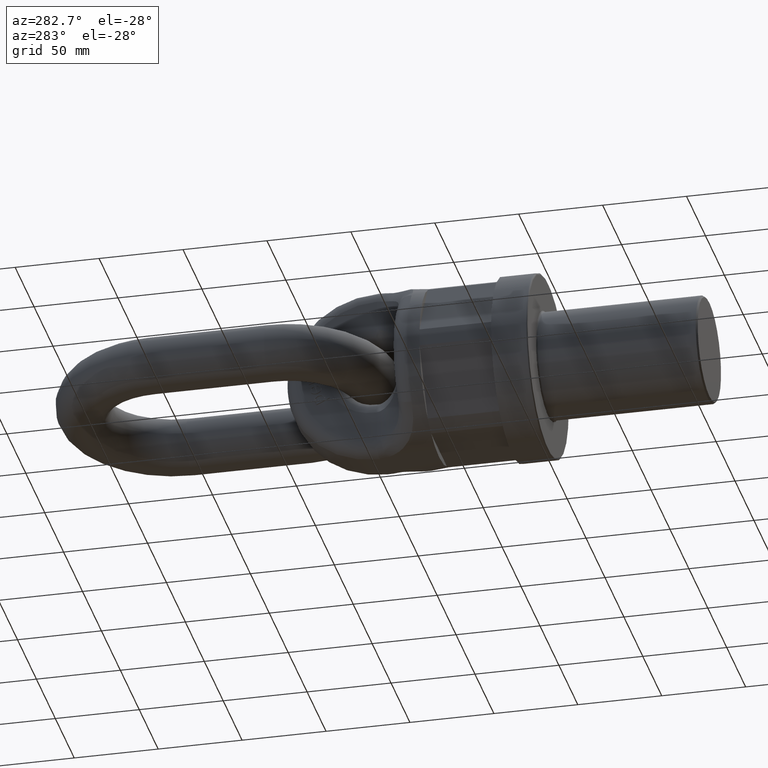
[diagram: clean part render]
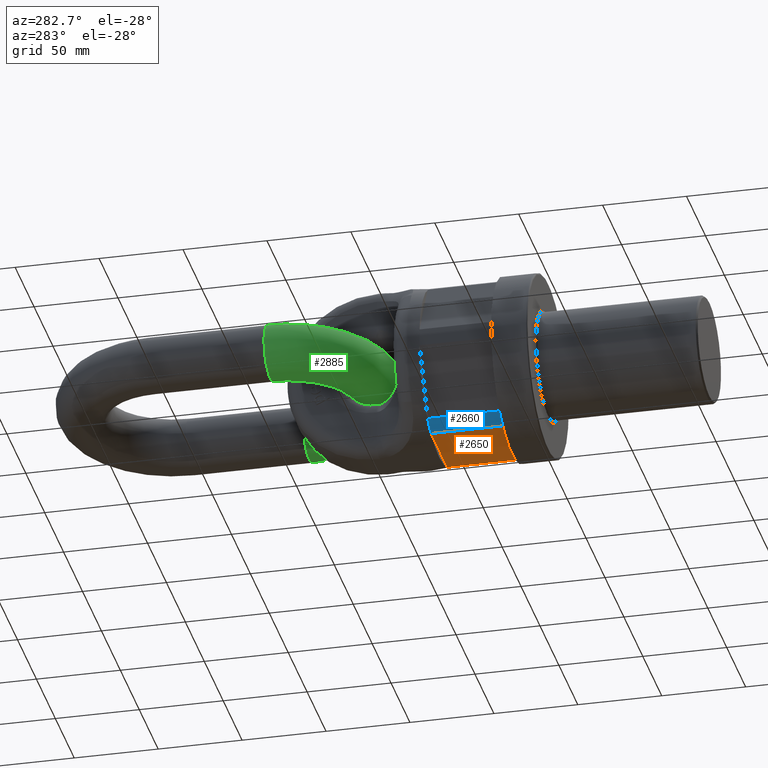
[diagram: same view with three faces highlighted in distinct colors, each labeled with its STEP entity id]
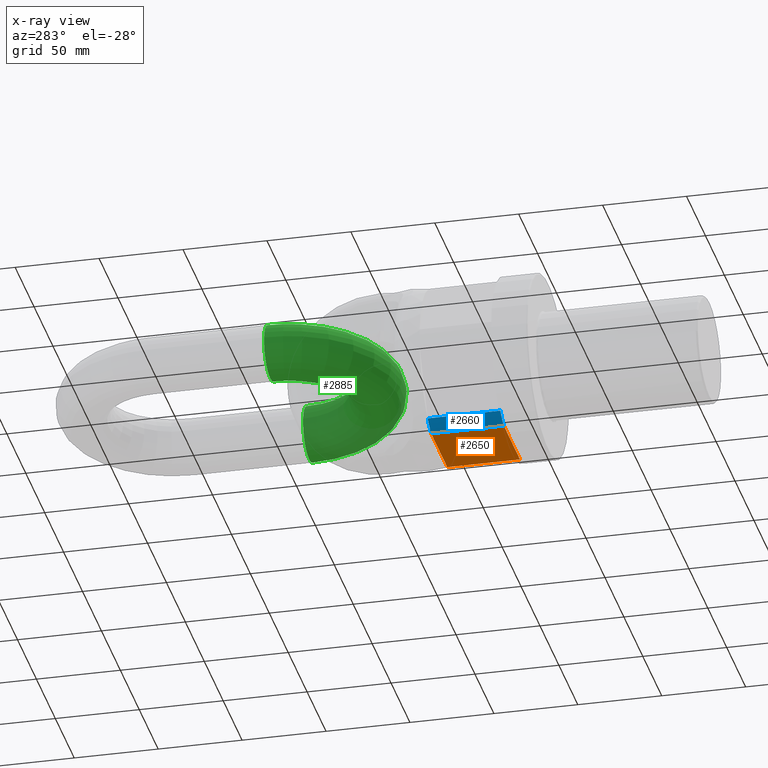
[diagram: x-ray of the same camera — body ghosted, the three highlighted faces saturated]
A machine part, auxiliary view with three faces highlighted in distinct colors.
The next image is the same camera in x-ray (body ghosted, the three faces saturated) — at least one of them is partly hidden behind the body in this view.
Their STEP definitions:

[orange] entity #2650 — the highlighted planar face has unit normal (0, 0, -1).
#1808=FACE_OUTER_BOUND('',#3073,.T.);
#2045=LINE('',#6594,#2301);
#2053=LINE('',#6617,#2309);
#2054=LINE('',#6619,#2310);
#2055=LINE('',#6621,#2311);
#2301=VECTOR('',#5831,1.);
#2309=VECTOR('',#5853,1.);
#2310=VECTOR('',#5854,1.);
#2311=VECTOR('',#5855,1.);
#2650=ADVANCED_FACE('',(#1808),#2892,.T.);
#2892=PLANE('',#5619);
#3073=EDGE_LOOP('',(#3376,#3377,#3378,#3379));
#3376=ORIENTED_EDGE('',*,*,#4963,.F.);
#3377=ORIENTED_EDGE('',*,*,#4952,.T.);
#3378=ORIENTED_EDGE('',*,*,#4964,.F.);
#3379=ORIENTED_EDGE('',*,*,#4965,.T.);
#4554=VERTEX_POINT('',#6593);
#4555=VERTEX_POINT('',#6595);
#4563=VERTEX_POINT('',#6618);
#4564=VERTEX_POINT('',#6620);
#4952=EDGE_CURVE('',#4555,#4554,#2045,.T.);
#4963=EDGE_CURVE('',#4555,#4563,#2053,.T.);
#4964=EDGE_CURVE('',#4564,#4554,#2054,.T.);
#4965=EDGE_CURVE('',#4564,#4563,#2055,.T.);
#5619=AXIS2_PLACEMENT_3D('',#6622,#5856,#5857);
#5831=DIRECTION('',(-1.,-5.13409619642544E-17,0.));
#5853=DIRECTION('',(-2.4492935982947E-17,1.,0.));
#5854=DIRECTION('',(2.4492935982947E-17,-1.,0.));
#5855=DIRECTION('',(1.,0.,0.));
#5856=DIRECTION('',(0.,0.,-1.));
#5857=DIRECTION('',(-1.,0.,0.));
#6593=CARTESIAN_POINT('',(-21.4189363259087,21.6666666666667,-47.5));
#6594=CARTESIAN_POINT('',(55.,21.6666666666667,-47.5));
#6595=CARTESIAN_POINT('',(21.4189363259087,21.6666666666667,-47.5));
#6617=CARTESIAN_POINT('',(21.4189363259087,5.24612636253301E-16,-47.5));
#6618=CARTESIAN_POINT('',(21.4189363259087,65.,-47.5));
#6619=CARTESIAN_POINT('',(-21.4189363259087,-5.24612636253301E-16,-47.5));
#6620=CARTESIAN_POINT('',(-21.4189363259087,65.,-47.5));
#6621=CARTESIAN_POINT('',(-27.4241377865072,65.,-47.5));
#6622=CARTESIAN_POINT('',(-27.4241377865072,65.,-47.5));

[blue] entity #2660 — the highlighted cylindrical surface (partial cylindrical patch) has radius 52.1059 mm, axis along (-0, 1, 0).
#1818=FACE_OUTER_BOUND('',#3083,.T.);
#2026=CYLINDRICAL_SURFACE('',#5635,52.1058617943637);
#2050=LINE('',#6611,#2306);
#2054=LINE('',#6619,#2310);
#2306=VECTOR('',#5848,1.);
#2310=VECTOR('',#5854,1.);
#2660=ADVANCED_FACE('',(#1818),#2026,.T.);
#3083=EDGE_LOOP('',(#3424,#3425,#3426,#3427));
#3424=ORIENTED_EDGE('',*,*,#4951,.F.);
#3425=ORIENTED_EDGE('',*,*,#4960,.T.);
#3426=ORIENTED_EDGE('',*,*,#4975,.T.);
#3427=ORIENTED_EDGE('',*,*,#4964,.T.);
#4553=VERTEX_POINT('',#6591);
#4554=VERTEX_POINT('',#6593);
#4561=VERTEX_POINT('',#6612);
#4564=VERTEX_POINT('',#6620);
#4951=EDGE_CURVE('',#4553,#4554,#5543,.T.);
#4960=EDGE_CURVE('',#4553,#4561,#2050,.T.);
#4964=EDGE_CURVE('',#4564,#4554,#2054,.T.);
#4975=EDGE_CURVE('',#4561,#4564,#5547,.T.);
#5543=CIRCLE('',#5611,52.1058617943637);
#5547=CIRCLE('',#5623,52.1058617943637);
#5611=AXIS2_PLACEMENT_3D('',#6592,#5829,#5830);
#5623=AXIS2_PLACEMENT_3D('',#6641,#5873,#5874);
#5635=AXIS2_PLACEMENT_3D('',#6653,#5897,#5898);
#5829=DIRECTION('',(5.13409619642544E-17,-1.,0.));
#5830=DIRECTION('',(-1.,-6.65845805534475E-17,0.));
#5848=DIRECTION('',(-2.4492935982947E-17,1.,0.));
#5854=DIRECTION('',(2.4492935982947E-17,-1.,0.));
#5873=DIRECTION('',(0.,-1.,0.));
#5874=DIRECTION('',(0.,0.,-1.));
#5897=DIRECTION('',(-2.4492935982947E-17,1.,0.));
#5898=DIRECTION('',(-1.,-2.4492935982947E-17,0.));
#6591=CARTESIAN_POINT('',(-30.4267385168065,21.6666666666667,-42.2993429802783));
#6592=CARTESIAN_POINT('',(-5.30680279630519E-16,21.6666666666667,0.));
#6593=CARTESIAN_POINT('',(-21.4189363259087,21.6666666666667,-47.5));
#6611=CARTESIAN_POINT('',(-30.4267385168065,2.62306318126651E-16,-42.2993429802783));
#6612=CARTESIAN_POINT('',(-30.4267385168065,65.,-42.2993429802783));
#6619=CARTESIAN_POINT('',(-21.4189363259087,-5.24612636253301E-16,-47.5));
#6620=CARTESIAN_POINT('',(-21.4189363259087,65.,-47.5));
#6641=CARTESIAN_POINT('',(-1.59204083889156E-15,65.,0.));
#6653=CARTESIAN_POINT('',(0.,0.,0.));

[green] entity #2885 — the highlighted toroidal blend (fillet) surface has major radius 51.5 mm and minor (blend) radius 16.5 mm.
#1804=TOROIDAL_SURFACE('',#5805,51.5,16.5);
#2885=ADVANCED_FACE('',(#3059,#3060),#1804,.T.);
#3059=FACE_BOUND('',#3345,.T.);
#3060=FACE_BOUND('',#3346,.T.);
#3345=EDGE_LOOP('',(#4537));
#3346=EDGE_LOOP('',(#4538));
#4537=ORIENTED_EDGE('',*,*,#5535,.T.);
#4538=ORIENTED_EDGE('',*,*,#5533,.F.);
#4937=VERTEX_POINT('',#9834);
#4939=VERTEX_POINT('',#9839);
#5533=EDGE_CURVE('',#4937,#4937,#5599,.T.);
#5535=EDGE_CURVE('',#4939,#4939,#5601,.T.);
#5599=CIRCLE('',#5801,16.5);
#5601=CIRCLE('',#5804,16.5);
#5801=AXIS2_PLACEMENT_3D('',#9833,#6553,#6554);
#5804=AXIS2_PLACEMENT_3D('',#9838,#6559,#6560);
#5805=AXIS2_PLACEMENT_3D('',#9840,#6561,#6562);
#6553=DIRECTION('',(-1.01064309961486E-15,1.,0.));
#6554=DIRECTION('',(0.,0.,-1.));
#6559=DIRECTION('',(0.,-1.,0.));
#6560=DIRECTION('',(0.,0.,-1.));
#6561=DIRECTION('',(0.,0.,-1.));
#6562=DIRECTION('',(-1.,0.,0.));
#9833=CARTESIAN_POINT('',(-51.5,154.,0.));
#9834=CARTESIAN_POINT('',(-51.5,154.,-16.5));
#9838=CARTESIAN_POINT('',(51.5,154.,0.));
#9839=CARTESIAN_POINT('',(51.5,154.,-16.5));
#9840=CARTESIAN_POINT('',(4.16333634234434E-14,154.,0.));